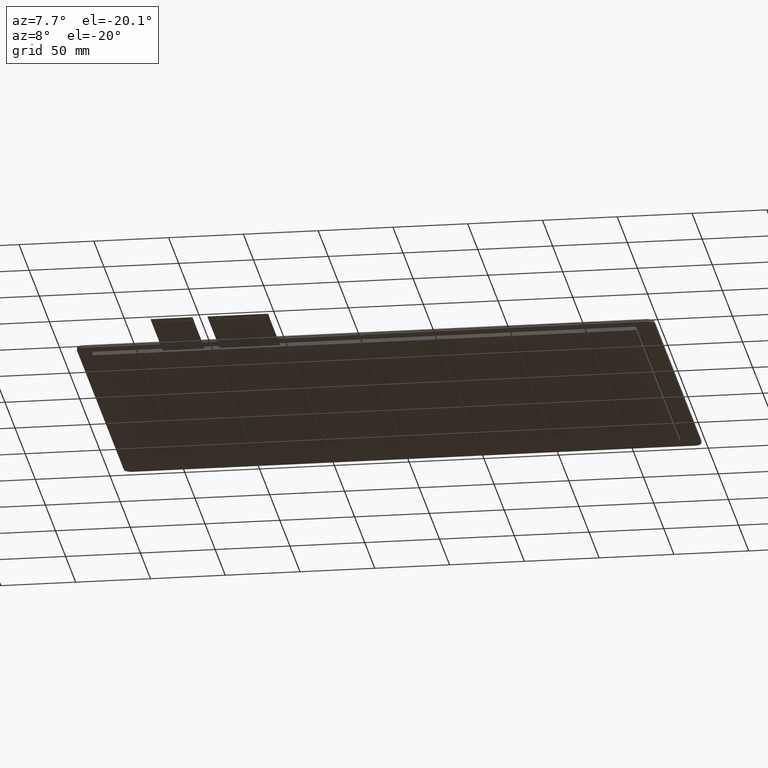
[diagram: clean part render]
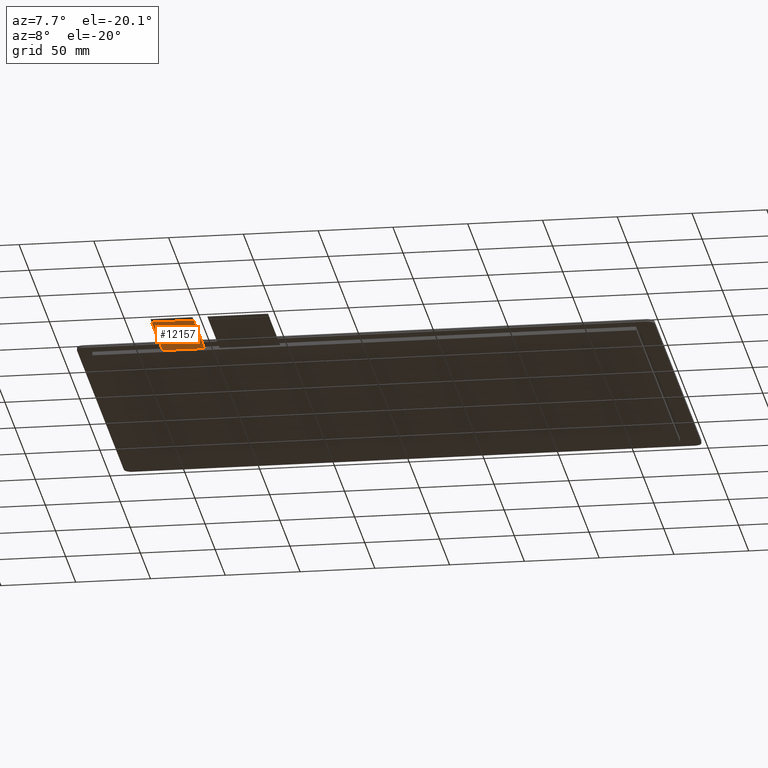
[diagram: same view with one face highlighted and labeled with its STEP entity id]
A machine part, auxiliary view. The second image highlights one B-rep face of the part: STEP entity #12157.
In plain terms, the highlighted planar face has unit normal (0, 0, -1).
Its self-contained STEP definition (entity closure, byte-faithful):
#597=PLANE('',#12771);
#1177=FACE_OUTER_BOUND('',#1761,.T.);
#1761=EDGE_LOOP('',(#11419,#11420,#11421,#11422));
#3438=LINE('',#19030,#5154);
#3443=LINE('',#19040,#5159);
#3444=LINE('',#19042,#5160);
#3445=LINE('',#19043,#5161);
#5154=VECTOR('',#15568,10.);
#5159=VECTOR('',#15577,10.);
#5160=VECTOR('',#15578,10.);
#5161=VECTOR('',#15579,10.);
#6347=VERTEX_POINT('',#19027);
#6348=VERTEX_POINT('',#19029);
#6351=VERTEX_POINT('',#19039);
#6352=VERTEX_POINT('',#19041);
#8050=EDGE_CURVE('',#6348,#6347,#3438,.T.);
#8055=EDGE_CURVE('',#6347,#6351,#3443,.T.);
#8056=EDGE_CURVE('',#6352,#6351,#3444,.T.);
#8057=EDGE_CURVE('',#6352,#6348,#3445,.T.);
#11419=ORIENTED_EDGE('',*,*,#8050,.T.);
#11420=ORIENTED_EDGE('',*,*,#8055,.T.);
#11421=ORIENTED_EDGE('',*,*,#8056,.F.);
#11422=ORIENTED_EDGE('',*,*,#8057,.T.);
#12157=ADVANCED_FACE('',(#1177),#597,.T.);
#12771=AXIS2_PLACEMENT_3D('',#19038,#15575,#15576);
#15568=DIRECTION('',(-1.,0.,0.));
#15575=DIRECTION('center_axis',(0.,0.,-1.));
#15576=DIRECTION('ref_axis',(-1.,0.,0.));
#15577=DIRECTION('',(-1.1842378929335E-15,1.,0.));
#15578=DIRECTION('',(-1.,-1.46564095660087E-16,0.));
#15579=DIRECTION('',(2.96059473233375E-16,-1.,0.));
#19027=CARTESIAN_POINT('',(-136.07,-167.1,-1.35));
#19029=CARTESIAN_POINT('',(-108.07,-167.1,-1.35));
#19030=CARTESIAN_POINT('',(-115.07,-167.1,-1.35));
#19038=CARTESIAN_POINT('Origin',(-122.07,-142.1,-1.35));
#19039=CARTESIAN_POINT('',(-136.07,-112.1,-1.35));
#19040=CARTESIAN_POINT('',(-136.07,-112.1,-1.35));
#19041=CARTESIAN_POINT('',(-108.07,-112.1,-1.35));
#19042=CARTESIAN_POINT('',(29.1900000000001,-112.1,-1.35));
#19043=CARTESIAN_POINT('',(-108.07,-172.1,-1.35));